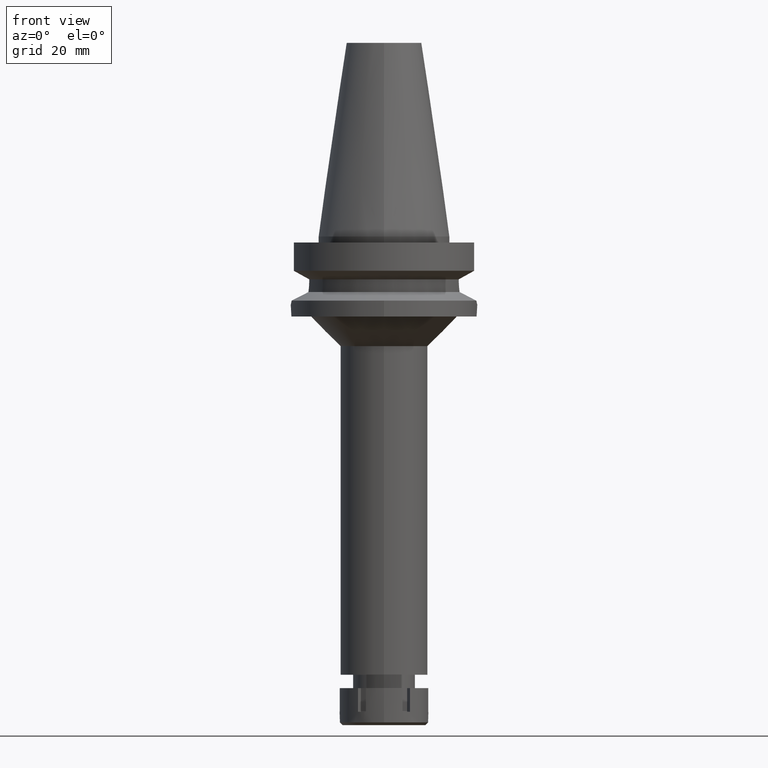
[diagram: clean part render]
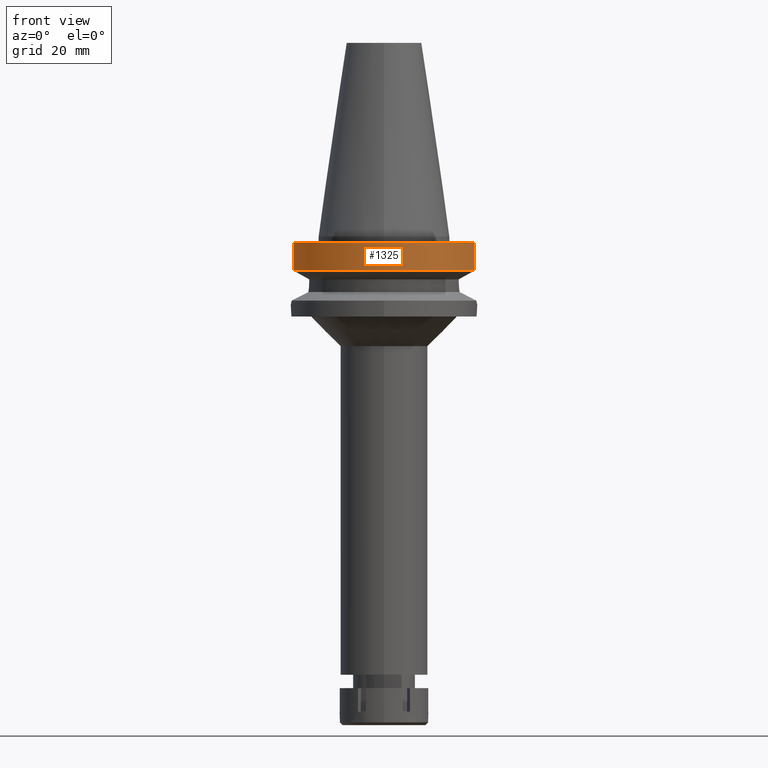
[diagram: same view with one face highlighted and labeled with its STEP entity id]
A machine part, front view. The second image highlights one B-rep face of the part: STEP entity #1325.
In plain terms, the highlighted cylindrical surface (partial cylindrical patch) has radius 31.5 mm, axis along (0, 0, -1).
Its self-contained STEP definition (entity closure, byte-faithful):
#118 = ORIENTED_EDGE ( 'NONE', *, *, #933, .T. ) ;
#197 = CARTESIAN_POINT ( 'NONE',  ( -30.45402291358000113, -8.049999278195999253, -11.56551215380000031 ) ) ;
#298 = CIRCLE ( 'NONE', #729, 31.50000000000000000 ) ;
#415 = VERTEX_POINT ( 'NONE', #1113 ) ;
#537 = ORIENTED_EDGE ( 'NONE', *, *, #783, .F. ) ;
#586 = CARTESIAN_POINT ( 'NONE',  ( 30.45402272279000044, -8.050000000000000711, -2.000000000000000000 ) ) ;
#616 = CYLINDRICAL_SURFACE ( 'NONE', #2126, 31.50000000000000000 ) ;
#729 = AXIS2_PLACEMENT_3D ( 'NONE', #1373, #2207, #1169 ) ;
#732 = AXIS2_PLACEMENT_3D ( 'NONE', #1058, #834, #3619 ) ;
#739 = LINE ( 'NONE', #197, #2359 ) ;
#783 = EDGE_CURVE ( 'NONE', #1640, #415, #2199, .T. ) ;
#813 = DIRECTION ( 'NONE',  ( 1.994621289529988906E-08, -7.545894673464957228E-08, 0.9999999999999968914 ) ) ;
#834 = DIRECTION ( 'NONE',  ( 0.0000000000000000000, 0.0000000000000000000, -1.000000000000000000 ) ) ;
#869 = EDGE_LOOP ( 'NONE', ( #1512, #118, #537, #1259 ) ) ;
#933 = EDGE_CURVE ( 'NONE', #1493, #415, #298, .T. ) ;
#1058 = CARTESIAN_POINT ( 'NONE',  ( 0.0000000000000000000, 2.162358853253999590E-14, -2.000000000000000000 ) ) ;
#1113 = CARTESIAN_POINT ( 'NONE',  ( 30.45402272279000044, -8.049999999999000622, -11.56550565266999975 ) ) ;
#1169 = DIRECTION ( 'NONE',  ( 0.0000000000000000000, -1.000000000000000000, 0.0000000000000000000 ) ) ;
#1204 = FACE_OUTER_BOUND ( 'NONE', #869, .T. ) ;
#1224 = DIRECTION ( 'NONE',  ( 0.0000000000000000000, 0.0000000000000000000, -1.000000000000000000 ) ) ;
#1259 = ORIENTED_EDGE ( 'NONE', *, *, #3037, .T. ) ;
#1325 = ADVANCED_FACE ( 'NONE', ( #1204 ), #616, .T. ) ;
#1373 = CARTESIAN_POINT ( 'NONE',  ( 0.0000000000000000000, 1.065333950388000029E-14, -11.56550565266999975 ) ) ;
#1493 = VERTEX_POINT ( 'NONE', #1880 ) ;
#1512 = ORIENTED_EDGE ( 'NONE', *, *, #3430, .F. ) ;
#1621 = CARTESIAN_POINT ( 'NONE',  ( 30.45402272279000044, -8.050000000000000711, -2.000000000000000000 ) ) ;
#1640 = VERTEX_POINT ( 'NONE', #586 ) ;
#1849 = CARTESIAN_POINT ( 'NONE',  ( -30.45402272279000044, -8.050000000000000711, -2.000000000000000000 ) ) ;
#1880 = CARTESIAN_POINT ( 'NONE',  ( -30.45402291358000113, -8.049999278195999253, -11.56551215380000031 ) ) ;
#2014 = CIRCLE ( 'NONE', #732, 31.50000000000000000 ) ;
#2126 = AXIS2_PLACEMENT_3D ( 'NONE', #2314, #1224, #2851 ) ;
#2199 = LINE ( 'NONE', #1621, #3357 ) ;
#2207 = DIRECTION ( 'NONE',  ( 0.0000000000000000000, 0.0000000000000000000, 1.000000000000000000 ) ) ;
#2314 = CARTESIAN_POINT ( 'NONE',  ( 0.0000000000000000000, 2.162358853253999590E-14, 76.56999999999999318 ) ) ;
#2359 = VECTOR ( 'NONE', #813, 1000.000000000000227 ) ;
#2422 = VERTEX_POINT ( 'NONE', #1849 ) ;
#2851 = DIRECTION ( 'NONE',  ( 0.0000000000000000000, -1.000000000000000000, 0.0000000000000000000 ) ) ;
#3037 = EDGE_CURVE ( 'NONE', #1640, #2422, #2014, .T. ) ;
#3357 = VECTOR ( 'NONE', #3584, 999.9999999999998863 ) ;
#3430 = EDGE_CURVE ( 'NONE', #1493, #2422, #739, .T. ) ;
#3584 = DIRECTION ( 'NONE',  ( -1.145023312779999569E-07, -4.331741411846998158E-07, -0.9999999999998997469 ) ) ;
#3619 = DIRECTION ( 'NONE',  ( 0.0000000000000000000, -1.000000000000000000, 0.0000000000000000000 ) ) ;